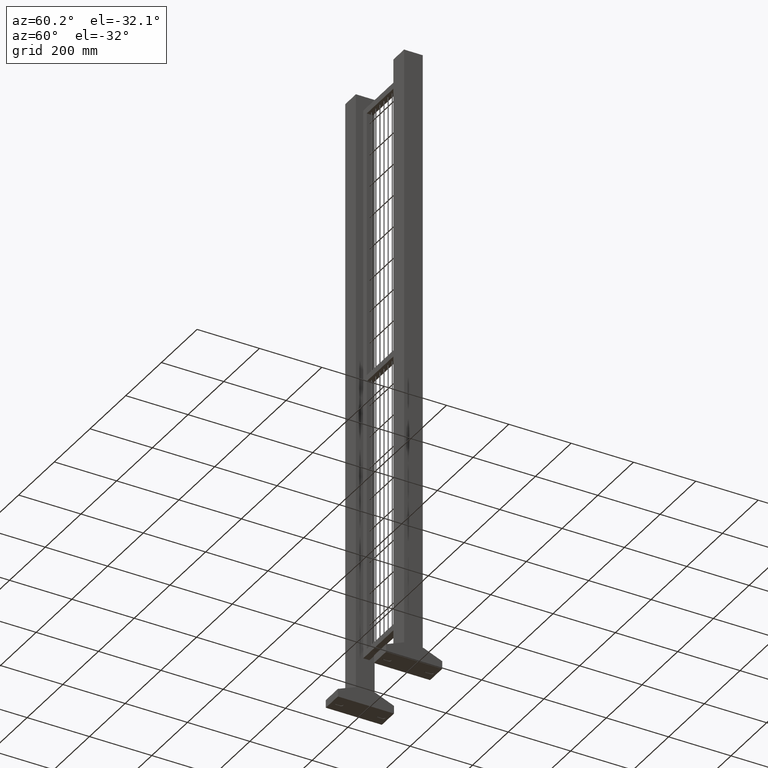
[diagram: clean part render]
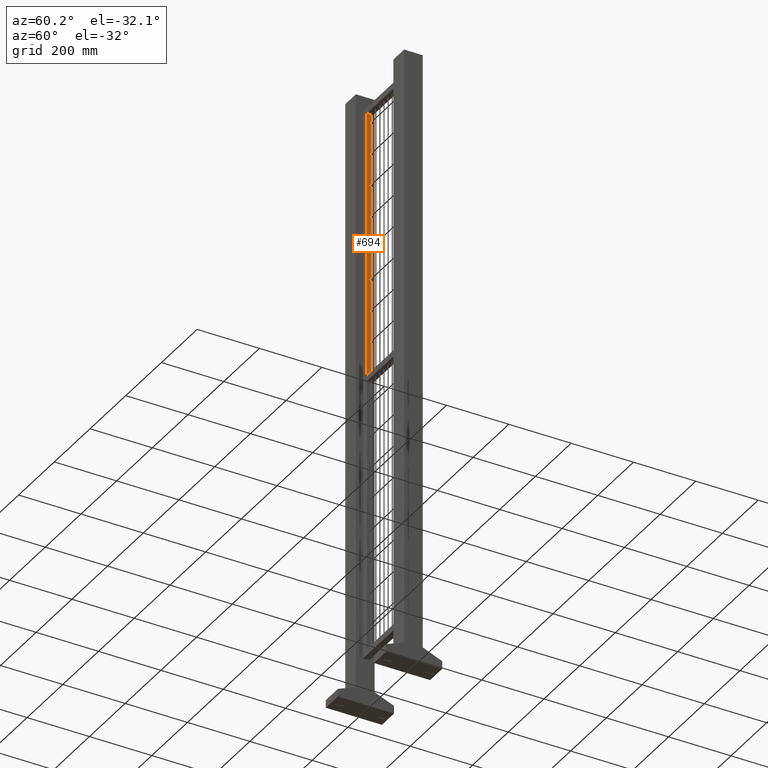
[diagram: same view with one face highlighted and labeled with its STEP entity id]
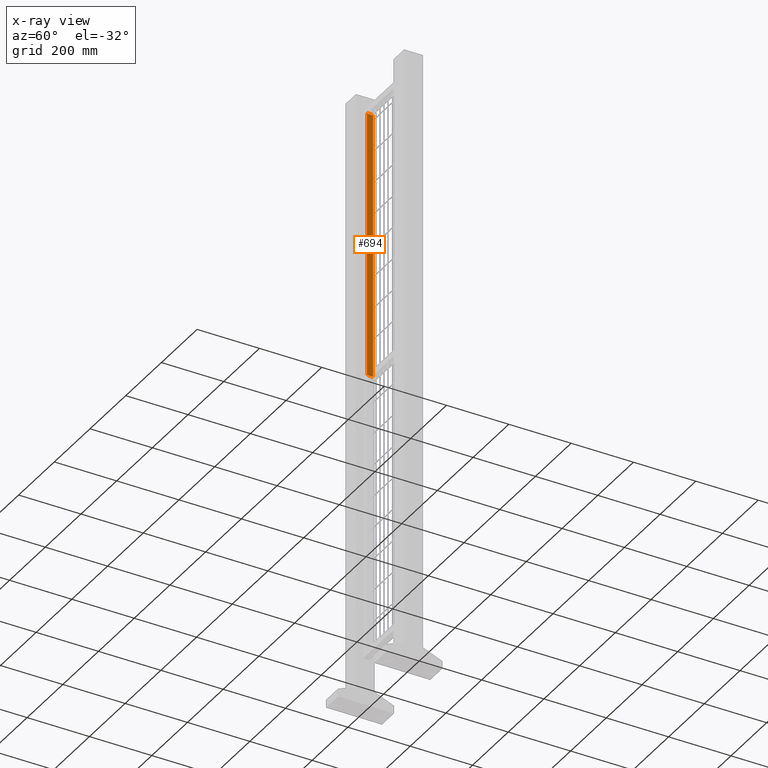
[diagram: x-ray of the same camera — body ghosted, the highlighted face saturated]
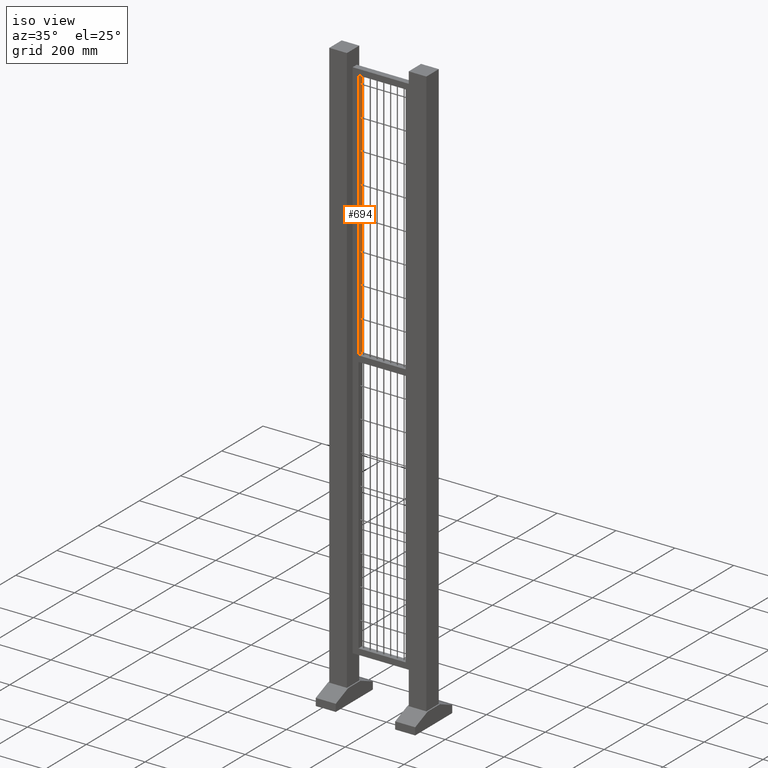
[diagram: same view with one face highlighted and labeled with its STEP entity id]
A machine part, auxiliary view. The second image highlights one B-rep face of the part: STEP entity #694.
The next image is the same camera in x-ray: the body ghosted, the highlighted face saturated — about 0% of this face is hidden behind the body in this view.
A second angle (iso view) of the same face is appended — the face is thin or edge-on in the first view.
In plain terms, the highlighted planar face has unit normal (1, 0, 0).
Its self-contained STEP definition (entity closure, byte-faithful):
#62=LINE('',#2404,#156);
#63=LINE('',#2407,#157);
#64=LINE('',#2409,#158);
#65=LINE('',#2411,#159);
#156=VECTOR('',#1997,1.);
#157=VECTOR('',#1998,1.);
#158=VECTOR('',#1999,1.);
#159=VECTOR('',#2000,1.);
#514=PLANE('',#1738);
#598=FACE_OUTER_BOUND('',#926,.T.);
#694=ADVANCED_FACE('',(#598),#514,.T.);
#926=EDGE_LOOP('',(#1083,#1084,#1085,#1086));
#1083=ORIENTED_EDGE('',*,*,#1481,.T.);
#1084=ORIENTED_EDGE('',*,*,#1482,.T.);
#1085=ORIENTED_EDGE('',*,*,#1483,.F.);
#1086=ORIENTED_EDGE('',*,*,#1484,.F.);
#1361=VERTEX_POINT('',#2405);
#1362=VERTEX_POINT('',#2406);
#1363=VERTEX_POINT('',#2408);
#1364=VERTEX_POINT('',#2410);
#1481=EDGE_CURVE('',#1361,#1362,#62,.T.);
#1482=EDGE_CURVE('',#1362,#1363,#63,.T.);
#1483=EDGE_CURVE('',#1364,#1363,#64,.T.);
#1484=EDGE_CURVE('',#1361,#1364,#65,.T.);
#1738=AXIS2_PLACEMENT_3D('',#2412,#2001,#2002);
#1997=DIRECTION('',(0.,0.,-1.));
#1998=DIRECTION('',(0.,1.,0.));
#1999=DIRECTION('',(0.,0.,-1.));
#2000=DIRECTION('',(0.,1.,0.));
#2001=DIRECTION('',(1.,0.,0.));
#2002=DIRECTION('',(0.,0.,-1.));
#2404=CARTESIAN_POINT('',(-79.9999999999991,-10.,880.));
#2405=CARTESIAN_POINT('',(-79.9999999999991,-10.,880.));
#2406=CARTESIAN_POINT('',(-80.0000000000009,-10.,19.9999999999997));
#2407=CARTESIAN_POINT('',(-80.0000000000009,-10.,19.9999999999997));
#2408=CARTESIAN_POINT('',(-79.9999999999991,10.,19.9999999999997));
#2409=CARTESIAN_POINT('',(-79.9999999999991,10.,880.));
#2410=CARTESIAN_POINT('',(-79.9999999999991,10.,880.));
#2411=CARTESIAN_POINT('',(-79.9999999999991,-10.,880.));
#2412=CARTESIAN_POINT('',(-79.9999999999991,-10.,880.));